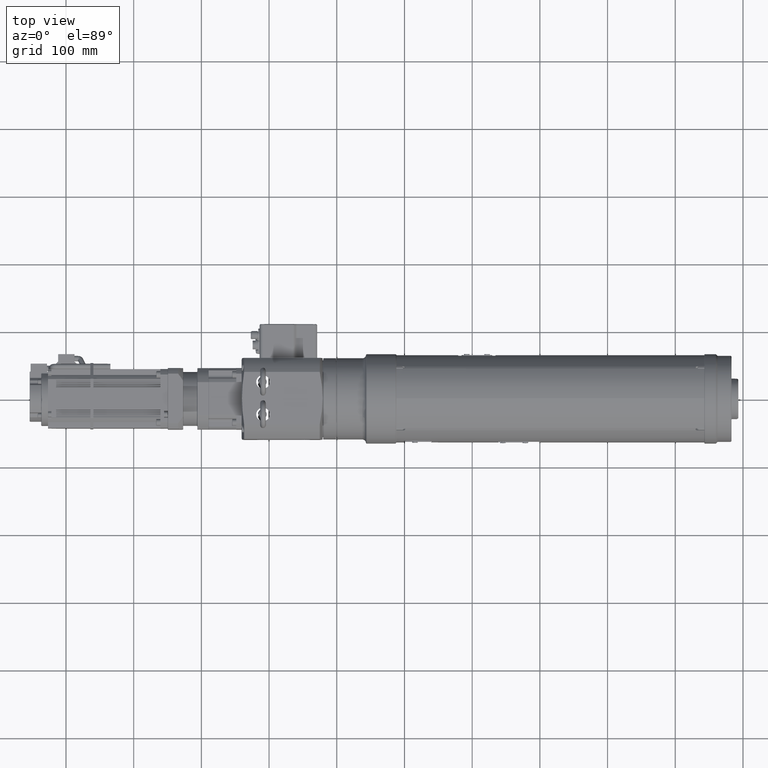
[diagram: clean part render]
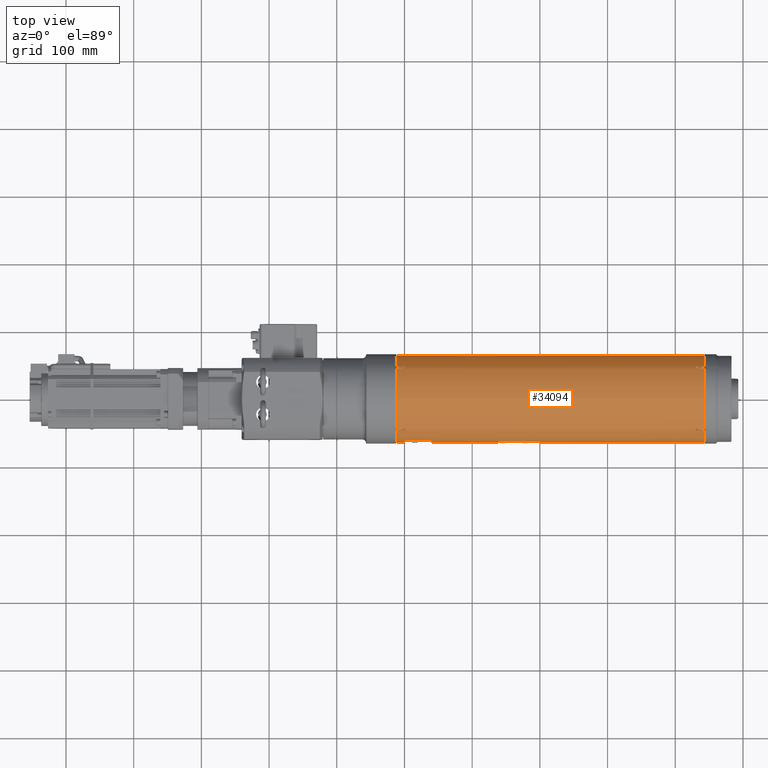
[diagram: same view with one face highlighted and labeled with its STEP entity id]
A machine part, top view. The second image highlights one B-rep face of the part: STEP entity #34094.
In plain terms, the highlighted cylindrical surface (bore or boss wall) has radius 64.5 mm, axis along (1, -0, 0).
Its self-contained STEP definition (entity closure, byte-faithful):
#377=FACE_BOUND('',#4638,.T.);
#378=FACE_BOUND('',#4639,.T.);
#379=FACE_BOUND('',#4640,.T.);
#1817=B_SPLINE_CURVE_WITH_KNOTS('',3,(#53776,#53777,#53778,#53779,#53780,
#53781,#53782,#53783,#53784,#53785,#53786,#53787,#53788,#53789,#53790,#53791,
#53792,#53793),.UNSPECIFIED.,.F.,.F.,(4,2,2,2,2,2,2,2,4),(0.,0.0941817951671154,
0.188363590334231,0.282545378323572,0.376727166312913,0.470908954302255,
0.565090742291597,0.659272537458713,0.753454332625828),.UNSPECIFIED.);
#1821=B_SPLINE_CURVE_WITH_KNOTS('',3,(#53926,#53927,#53928,#53929,#53930,
#53931,#53932,#53933,#53934,#53935,#53936,#53937,#53938,#53939,#53940,#53941,
#53942,#53943),.UNSPECIFIED.,.F.,.F.,(4,2,2,2,2,2,2,2,4),(0.,0.0941817951671119,
0.188363590334224,0.282545378323567,0.376727166312911,0.470908954302254,
0.565090742291597,0.659272537458709,0.753454332625821),.UNSPECIFIED.);
#1823=B_SPLINE_CURVE_WITH_KNOTS('',3,(#53981,#53982,#53983,#53984,#53985,
#53986,#53987,#53988,#53989,#53990,#53991,#53992,#53993,#53994,#53995,#53996,
#53997,#53998),.UNSPECIFIED.,.F.,.F.,(4,2,2,2,2,2,2,2,4),(-0.753454332625818,
-0.659272537458706,-0.565090742291594,-0.470908954302252,-0.376727166312909,
-0.282545378323567,-0.188363590334224,-0.094181795167112,0.),
 .UNSPECIFIED.);
#1824=B_SPLINE_CURVE_WITH_KNOTS('',3,(#54034,#54035,#54036,#54037,#54038,
#54039,#54040,#54041,#54042,#54043,#54044,#54045,#54046,#54047,#54048,#54049,
#54050,#54051),.UNSPECIFIED.,.F.,.F.,(4,2,2,2,2,2,2,2,4),(0.,0.0941817951671119,
0.188363590334224,0.282545378323567,0.376727166312911,0.470908954302254,
0.565090742291597,0.659272537458709,0.753454332625821),.UNSPECIFIED.);
#1825=B_SPLINE_CURVE_WITH_KNOTS('',3,(#54059,#54060,#54061,#54062,#54063,
#54064,#54065,#54066,#54067,#54068,#54069,#54070,#54071,#54072,#54073,#54074,
#54075,#54076),.UNSPECIFIED.,.F.,.F.,(4,2,2,2,2,2,2,2,4),(-0.753454332625819,
-0.659272537458707,-0.565090742291595,-0.470908954302252,-0.37672716631291,
-0.282545378323567,-0.188363590334224,-0.094181795167112,0.),
 .UNSPECIFIED.);
#1826=B_SPLINE_CURVE_WITH_KNOTS('',3,(#54079,#54080,#54081,#54082,#54083,
#54084,#54085,#54086,#54087,#54088,#54089,#54090,#54091,#54092,#54093,#54094,
#54095,#54096),.UNSPECIFIED.,.F.,.F.,(4,2,2,2,2,2,2,2,4),(-0.753454332625819,
-0.659272537458707,-0.565090742291595,-0.470908954302252,-0.37672716631291,
-0.282545378323567,-0.188363590334224,-0.094181795167112,0.),
 .UNSPECIFIED.);
#1827=B_SPLINE_CURVE_WITH_KNOTS('',3,(#54099,#54100,#54101,#54102,#54103,
#54104,#54105,#54106,#54107,#54108,#54109,#54110,#54111,#54112,#54113,#54114,
#54115,#54116),.UNSPECIFIED.,.F.,.F.,(4,2,2,2,2,2,2,2,4),(-0.753454332625819,
-0.659272537458707,-0.565090742291595,-0.470908954302252,-0.37672716631291,
-0.282545378323567,-0.188363590334224,-0.094181795167112,0.),
 .UNSPECIFIED.);
#1828=B_SPLINE_CURVE_WITH_KNOTS('',3,(#54122,#54123,#54124,#54125,#54126,
#54127,#54128,#54129,#54130,#54131,#54132,#54133,#54134,#54135,#54136,#54137,
#54138,#54139),.UNSPECIFIED.,.F.,.F.,(4,2,2,2,2,2,2,2,4),(0.,0.0941817951671119,
0.188363590334224,0.282545378323567,0.376727166312911,0.470908954302254,
0.565090742291597,0.659272537458709,0.753454332625821),.UNSPECIFIED.);
#2737=FACE_OUTER_BOUND('',#4637,.T.);
#4637=EDGE_LOOP('',(#24714,#24715,#24716,#24717,#24718,#24719,#24720,#24721,
#24722,#24723,#24724,#24725,#24726,#24727,#24728,#24729,#24730,#24731,#24732,
#24733,#24734,#24735,#24736,#24737,#24738,#24739,#24740,#24741,#24742,#24743,
#24744,#24745,#24746,#24747,#24748,#24749));
#4638=EDGE_LOOP('',(#24750,#24751,#24752,#24753));
#4639=EDGE_LOOP('',(#24754,#24755,#24756,#24757));
#4640=EDGE_LOOP('',(#24758,#24759,#24760,#24761));
#6621=CIRCLE('',#36654,64.5);
#6625=CIRCLE('',#36659,64.5);
#6626=CIRCLE('',#36661,64.5);
#6628=CIRCLE('',#36664,64.5);
#6629=CIRCLE('',#36665,64.5);
#6638=CIRCLE('',#36683,64.5);
#6642=CIRCLE('',#36693,64.5);
#6643=CIRCLE('',#36700,64.5);
#6644=CIRCLE('',#36702,64.5);
#6645=CIRCLE('',#36704,64.5);
#6646=CIRCLE('',#36707,64.5);
#6647=CIRCLE('',#36709,64.5);
#6648=CIRCLE('',#36710,64.5);
#6649=CIRCLE('',#36711,64.5);
#6650=CIRCLE('',#36712,64.5);
#6651=CIRCLE('',#36713,64.5);
#8445=LINE('',#53740,#11125);
#8451=LINE('',#53753,#11131);
#8457=LINE('',#53802,#11137);
#8462=LINE('',#53811,#11142);
#8464=LINE('',#53816,#11144);
#8466=LINE('',#53820,#11146);
#8482=LINE('',#53894,#11162);
#8484=LINE('',#53898,#11164);
#8490=LINE('',#53951,#11170);
#8497=LINE('',#54004,#11177);
#8501=LINE('',#54012,#11181);
#8504=LINE('',#54025,#11184);
#8505=LINE('',#54027,#11185);
#8507=LINE('',#54053,#11187);
#8508=LINE('',#54056,#11188);
#8509=LINE('',#54058,#11189);
#8510=LINE('',#54078,#11190);
#8511=LINE('',#54098,#11191);
#8512=LINE('',#54120,#11192);
#8513=LINE('',#54141,#11193);
#8514=LINE('',#54144,#11194);
#8515=LINE('',#54147,#11195);
#8516=LINE('',#54150,#11196);
#11125=VECTOR('',#42437,10.);
#11131=VECTOR('',#42445,10.);
#11137=VECTOR('',#42455,10.);
#11142=VECTOR('',#42462,10.);
#11144=VECTOR('',#42466,10.);
#11146=VECTOR('',#42468,10.);
#11162=VECTOR('',#42512,10.);
#11164=VECTOR('',#42514,10.);
#11170=VECTOR('',#42532,10.);
#11177=VECTOR('',#42543,10.);
#11181=VECTOR('',#42549,10.);
#11184=VECTOR('',#42566,10.);
#11185=VECTOR('',#42567,10.);
#11187=VECTOR('',#42575,10.);
#11188=VECTOR('',#42578,64.5);
#11189=VECTOR('',#42579,10.);
#11190=VECTOR('',#42580,10.);
#11191=VECTOR('',#42581,10.);
#11192=VECTOR('',#42584,10.);
#11193=VECTOR('',#42585,10.);
#11194=VECTOR('',#42588,10.);
#11195=VECTOR('',#42591,10.);
#11196=VECTOR('',#42594,10.);
#14207=VERTEX_POINT('',#53685);
#14208=VERTEX_POINT('',#53687);
#14209=VERTEX_POINT('',#53692);
#14212=VERTEX_POINT('',#53698);
#14213=VERTEX_POINT('',#53702);
#14214=VERTEX_POINT('',#53704);
#14215=VERTEX_POINT('',#53708);
#14217=VERTEX_POINT('',#53712);
#14218=VERTEX_POINT('',#53714);
#14227=VERTEX_POINT('',#53737);
#14228=VERTEX_POINT('',#53739);
#14233=VERTEX_POINT('',#53750);
#14234=VERTEX_POINT('',#53752);
#14236=VERTEX_POINT('',#53775);
#14239=VERTEX_POINT('',#53801);
#14242=VERTEX_POINT('',#53810);
#14243=VERTEX_POINT('',#53814);
#14244=VERTEX_POINT('',#53815);
#14245=VERTEX_POINT('',#53817);
#14246=VERTEX_POINT('',#53819);
#14265=VERTEX_POINT('',#53892);
#14266=VERTEX_POINT('',#53893);
#14267=VERTEX_POINT('',#53895);
#14268=VERTEX_POINT('',#53897);
#14270=VERTEX_POINT('',#53925);
#14273=VERTEX_POINT('',#53949);
#14275=VERTEX_POINT('',#53979);
#14279=VERTEX_POINT('',#54011);
#14280=VERTEX_POINT('',#54019);
#14281=VERTEX_POINT('',#54020);
#14282=VERTEX_POINT('',#54024);
#14283=VERTEX_POINT('',#54026);
#14284=VERTEX_POINT('',#54032);
#14285=VERTEX_POINT('',#54033);
#14286=VERTEX_POINT('',#54052);
#14287=VERTEX_POINT('',#54054);
#14288=VERTEX_POINT('',#54057);
#14289=VERTEX_POINT('',#54077);
#14290=VERTEX_POINT('',#54097);
#14291=VERTEX_POINT('',#54117);
#14292=VERTEX_POINT('',#54119);
#14293=VERTEX_POINT('',#54121);
#14294=VERTEX_POINT('',#54140);
#14295=VERTEX_POINT('',#54142);
#14296=VERTEX_POINT('',#54145);
#14297=VERTEX_POINT('',#54148);
#18006=EDGE_CURVE('',#14207,#14208,#6621,.T.);
#18013=EDGE_CURVE('',#14212,#14209,#6625,.T.);
#18015=EDGE_CURVE('',#14213,#14214,#6626,.T.);
#18020=EDGE_CURVE('',#14217,#14218,#6628,.T.);
#18021=EDGE_CURVE('',#14218,#14215,#6629,.T.);
#18032=EDGE_CURVE('',#14227,#14228,#8445,.T.);
#18038=EDGE_CURVE('',#14233,#14234,#8451,.T.);
#18041=EDGE_CURVE('',#14234,#14236,#1817,.T.);
#18046=EDGE_CURVE('',#14214,#14239,#8457,.T.);
#18051=EDGE_CURVE('',#14215,#14242,#8462,.T.);
#18053=EDGE_CURVE('',#14243,#14244,#8464,.T.);
#18055=EDGE_CURVE('',#14245,#14246,#8466,.T.);
#18070=EDGE_CURVE('',#14246,#14243,#6638,.T.);
#18081=EDGE_CURVE('',#14265,#14266,#8482,.T.);
#18083=EDGE_CURVE('',#14267,#14268,#8484,.T.);
#18088=EDGE_CURVE('',#14268,#14265,#6642,.T.);
#18090=EDGE_CURVE('',#14228,#14270,#1821,.T.);
#18094=EDGE_CURVE('',#14273,#14213,#8490,.T.);
#18099=EDGE_CURVE('',#14275,#14273,#1823,.T.);
#18103=EDGE_CURVE('',#14208,#14275,#8497,.T.);
#18107=EDGE_CURVE('',#14209,#14279,#8501,.T.);
#18109=EDGE_CURVE('',#14244,#14245,#6643,.T.);
#18110=EDGE_CURVE('',#14266,#14267,#6644,.T.);
#18111=EDGE_CURVE('',#14280,#14281,#6645,.T.);
#18113=EDGE_CURVE('',#14281,#14282,#8504,.T.);
#18114=EDGE_CURVE('',#14283,#14280,#8505,.T.);
#18116=EDGE_CURVE('',#14282,#14283,#6646,.T.);
#18117=EDGE_CURVE('',#14284,#14285,#1824,.T.);
#18118=EDGE_CURVE('',#14286,#14284,#8507,.T.);
#18119=EDGE_CURVE('',#14287,#14286,#6647,.T.);
#18120=EDGE_CURVE('',#14287,#14218,#8508,.T.);
#18121=EDGE_CURVE('',#14288,#14217,#8509,.T.);
#18122=EDGE_CURVE('',#14239,#14288,#1825,.T.);
#18123=EDGE_CURVE('',#14289,#14207,#8510,.T.);
#18124=EDGE_CURVE('',#14279,#14289,#1826,.T.);
#18125=EDGE_CURVE('',#14290,#14212,#8511,.T.);
#18126=EDGE_CURVE('',#14242,#14290,#1827,.T.);
#18127=EDGE_CURVE('',#14291,#14287,#6648,.T.);
#18128=EDGE_CURVE('',#14292,#14291,#8512,.T.);
#18129=EDGE_CURVE('',#14293,#14292,#1828,.T.);
#18130=EDGE_CURVE('',#14294,#14293,#8513,.T.);
#18131=EDGE_CURVE('',#14295,#14294,#6649,.T.);
#18132=EDGE_CURVE('',#14270,#14295,#8514,.T.);
#18133=EDGE_CURVE('',#14296,#14227,#6650,.T.);
#18134=EDGE_CURVE('',#14236,#14296,#8515,.T.);
#18135=EDGE_CURVE('',#14297,#14233,#6651,.T.);
#18136=EDGE_CURVE('',#14285,#14297,#8516,.T.);
#24714=ORIENTED_EDGE('',*,*,#18117,.F.);
#24715=ORIENTED_EDGE('',*,*,#18118,.F.);
#24716=ORIENTED_EDGE('',*,*,#18119,.F.);
#24717=ORIENTED_EDGE('',*,*,#18120,.T.);
#24718=ORIENTED_EDGE('',*,*,#18020,.F.);
#24719=ORIENTED_EDGE('',*,*,#18121,.F.);
#24720=ORIENTED_EDGE('',*,*,#18122,.F.);
#24721=ORIENTED_EDGE('',*,*,#18046,.F.);
#24722=ORIENTED_EDGE('',*,*,#18015,.F.);
#24723=ORIENTED_EDGE('',*,*,#18094,.F.);
#24724=ORIENTED_EDGE('',*,*,#18099,.F.);
#24725=ORIENTED_EDGE('',*,*,#18103,.F.);
#24726=ORIENTED_EDGE('',*,*,#18006,.F.);
#24727=ORIENTED_EDGE('',*,*,#18123,.F.);
#24728=ORIENTED_EDGE('',*,*,#18124,.F.);
#24729=ORIENTED_EDGE('',*,*,#18107,.F.);
#24730=ORIENTED_EDGE('',*,*,#18013,.F.);
#24731=ORIENTED_EDGE('',*,*,#18125,.F.);
#24732=ORIENTED_EDGE('',*,*,#18126,.F.);
#24733=ORIENTED_EDGE('',*,*,#18051,.F.);
#24734=ORIENTED_EDGE('',*,*,#18021,.F.);
#24735=ORIENTED_EDGE('',*,*,#18120,.F.);
#24736=ORIENTED_EDGE('',*,*,#18127,.F.);
#24737=ORIENTED_EDGE('',*,*,#18128,.F.);
#24738=ORIENTED_EDGE('',*,*,#18129,.F.);
#24739=ORIENTED_EDGE('',*,*,#18130,.F.);
#24740=ORIENTED_EDGE('',*,*,#18131,.F.);
#24741=ORIENTED_EDGE('',*,*,#18132,.F.);
#24742=ORIENTED_EDGE('',*,*,#18090,.F.);
#24743=ORIENTED_EDGE('',*,*,#18032,.F.);
#24744=ORIENTED_EDGE('',*,*,#18133,.F.);
#24745=ORIENTED_EDGE('',*,*,#18134,.F.);
#24746=ORIENTED_EDGE('',*,*,#18041,.F.);
#24747=ORIENTED_EDGE('',*,*,#18038,.F.);
#24748=ORIENTED_EDGE('',*,*,#18135,.F.);
#24749=ORIENTED_EDGE('',*,*,#18136,.F.);
#24750=ORIENTED_EDGE('',*,*,#18088,.F.);
#24751=ORIENTED_EDGE('',*,*,#18083,.F.);
#24752=ORIENTED_EDGE('',*,*,#18110,.F.);
#24753=ORIENTED_EDGE('',*,*,#18081,.F.);
#24754=ORIENTED_EDGE('',*,*,#18070,.F.);
#24755=ORIENTED_EDGE('',*,*,#18055,.F.);
#24756=ORIENTED_EDGE('',*,*,#18109,.F.);
#24757=ORIENTED_EDGE('',*,*,#18053,.F.);
#24758=ORIENTED_EDGE('',*,*,#18114,.T.);
#24759=ORIENTED_EDGE('',*,*,#18111,.T.);
#24760=ORIENTED_EDGE('',*,*,#18113,.T.);
#24761=ORIENTED_EDGE('',*,*,#18116,.T.);
#31344=CYLINDRICAL_SURFACE('',#36708,64.5);
#34094=ADVANCED_FACE('',(#2737,#377,#378,#379),#31344,.T.);
#36654=AXIS2_PLACEMENT_3D('',#53688,#42388,#42389);
#36659=AXIS2_PLACEMENT_3D('',#53700,#42401,#42402);
#36661=AXIS2_PLACEMENT_3D('',#53705,#42406,#42407);
#36664=AXIS2_PLACEMENT_3D('',#53715,#42415,#42416);
#36665=AXIS2_PLACEMENT_3D('',#53716,#42417,#42418);
#36683=AXIS2_PLACEMENT_3D('',#53849,#42491,#42492);
#36693=AXIS2_PLACEMENT_3D('',#53904,#42523,#42524);
#36700=AXIS2_PLACEMENT_3D('',#54015,#42553,#42554);
#36702=AXIS2_PLACEMENT_3D('',#54017,#42557,#42558);
#36704=AXIS2_PLACEMENT_3D('',#54021,#42561,#42562);
#36707=AXIS2_PLACEMENT_3D('',#54030,#42571,#42572);
#36708=AXIS2_PLACEMENT_3D('',#54031,#42573,#42574);
#36709=AXIS2_PLACEMENT_3D('',#54055,#42576,#42577);
#36710=AXIS2_PLACEMENT_3D('',#54118,#42582,#42583);
#36711=AXIS2_PLACEMENT_3D('',#54143,#42586,#42587);
#36712=AXIS2_PLACEMENT_3D('',#54146,#42589,#42590);
#36713=AXIS2_PLACEMENT_3D('',#54149,#42592,#42593);
#42388=DIRECTION('center_axis',(-1.,0.,0.));
#42389=DIRECTION('ref_axis',(9.86076131526265E-32,-2.98660214944739E-31,
-1.));
#42401=DIRECTION('center_axis',(-1.,0.,0.));
#42402=DIRECTION('ref_axis',(9.86076131526265E-32,-2.98660214944739E-31,
-1.));
#42406=DIRECTION('center_axis',(-1.,0.,0.));
#42407=DIRECTION('ref_axis',(9.86076131526265E-32,-2.98660214944739E-31,
-1.));
#42415=DIRECTION('center_axis',(-1.,0.,0.));
#42416=DIRECTION('ref_axis',(9.86076131526265E-32,-2.98660214944739E-31,
-1.));
#42417=DIRECTION('center_axis',(-1.,0.,0.));
#42418=DIRECTION('ref_axis',(9.86076131526265E-32,-2.98660214944739E-31,
-1.));
#42437=DIRECTION('',(-1.,4.93038065763132E-32,-9.86076131526265E-32));
#42445=DIRECTION('',(-1.,4.93038065763132E-32,-9.86076131526265E-32));
#42455=DIRECTION('',(1.,-4.93038065763132E-32,9.86076131526265E-32));
#42462=DIRECTION('',(1.,-4.93038065763132E-32,9.86076131526265E-32));
#42466=DIRECTION('',(-1.,4.93038065763132E-32,-9.86076131526265E-32));
#42468=DIRECTION('',(1.,-4.93038065763132E-32,9.86076131526265E-32));
#42491=DIRECTION('center_axis',(-1.,4.93038065763132E-32,-9.86076131526265E-32));
#42492=DIRECTION('ref_axis',(9.86076131526265E-32,-2.98660214944739E-31,
-1.));
#42512=DIRECTION('',(1.,-4.93038065763132E-32,9.86076131526265E-32));
#42514=DIRECTION('',(-1.,4.93038065763132E-32,-9.86076131526265E-32));
#42523=DIRECTION('center_axis',(1.,-4.93038065763132E-32,9.86076131526265E-32));
#42524=DIRECTION('ref_axis',(9.86076131526265E-32,-2.98660214944739E-31,
-1.));
#42532=DIRECTION('',(-1.,4.93038065763132E-32,-9.86076131526265E-32));
#42543=DIRECTION('',(1.,-4.93038065763132E-32,9.86076131526265E-32));
#42549=DIRECTION('',(1.,-4.93038065763132E-32,9.86076131526265E-32));
#42553=DIRECTION('center_axis',(1.,-4.93038065763132E-32,9.86076131526265E-32));
#42554=DIRECTION('ref_axis',(9.86076131526265E-32,-2.98660214944739E-31,
-1.));
#42557=DIRECTION('center_axis',(-1.,4.93038065763132E-32,-9.86076131526265E-32));
#42558=DIRECTION('ref_axis',(9.86076131526265E-32,-2.98660214944739E-31,
-1.));
#42561=DIRECTION('center_axis',(1.,-4.93038065763132E-32,9.86076131526265E-32));
#42562=DIRECTION('ref_axis',(9.86076131526265E-32,-2.98660214944739E-31,
-1.));
#42566=DIRECTION('',(-1.,4.93038065763132E-32,-9.86076131526265E-32));
#42567=DIRECTION('',(1.,-4.93038065763132E-32,9.86076131526265E-32));
#42571=DIRECTION('center_axis',(-1.,4.93038065763132E-32,-9.86076131526265E-32));
#42572=DIRECTION('ref_axis',(9.86076131526265E-32,-2.98660214944739E-31,
-1.));
#42573=DIRECTION('center_axis',(1.,-4.93038065763132E-32,9.86076131526265E-32));
#42574=DIRECTION('ref_axis',(9.86076131526265E-32,-2.98660214944739E-31,
-1.));
#42575=DIRECTION('',(-1.,4.93038065763132E-32,-9.86076131526265E-32));
#42576=DIRECTION('center_axis',(1.,-4.93038065763132E-32,9.86076131526265E-32));
#42577=DIRECTION('ref_axis',(9.86076131526265E-32,-2.98660214944739E-31,
-1.));
#42578=DIRECTION('',(-1.,4.93038065763132E-32,-9.86076131526265E-32));
#42579=DIRECTION('',(-1.,4.93038065763132E-32,-9.86076131526265E-32));
#42580=DIRECTION('',(-1.,4.93038065763132E-32,-9.86076131526265E-32));
#42581=DIRECTION('',(-1.,4.93038065763132E-32,-9.86076131526265E-32));
#42582=DIRECTION('center_axis',(1.,-4.93038065763132E-32,9.86076131526265E-32));
#42583=DIRECTION('ref_axis',(9.86076131526265E-32,-2.98660214944739E-31,
-1.));
#42584=DIRECTION('',(1.,-4.93038065763132E-32,9.86076131526265E-32));
#42585=DIRECTION('',(-1.,4.93038065763132E-32,-9.86076131526265E-32));
#42586=DIRECTION('center_axis',(1.,-4.93038065763132E-32,9.86076131526265E-32));
#42587=DIRECTION('ref_axis',(9.86076131526265E-32,-2.98660214944739E-31,
-1.));
#42588=DIRECTION('',(1.,-4.93038065763132E-32,9.86076131526265E-32));
#42589=DIRECTION('center_axis',(1.,-4.93038065763132E-32,9.86076131526265E-32));
#42590=DIRECTION('ref_axis',(9.86076131526265E-32,-2.98660214944739E-31,
-1.));
#42591=DIRECTION('',(1.,-4.93038065763132E-32,9.86076131526265E-32));
#42592=DIRECTION('center_axis',(1.,-4.93038065763132E-32,9.86076131526265E-32));
#42593=DIRECTION('ref_axis',(9.86076131526265E-32,-2.98660214944739E-31,
-1.));
#42594=DIRECTION('',(1.,-4.93038065763132E-32,9.86076131526265E-32));
#53685=CARTESIAN_POINT('',(87.9999999999999,43.806348507457,-47.3418824133897));
#53687=CARTESIAN_POINT('',(87.9999999999999,-43.806348507457,-47.3418824133898));
#53688=CARTESIAN_POINT('Origin',(87.9999999999999,2.24332319922225E-29,
-4.4866463984445E-29));
#53692=CARTESIAN_POINT('',(87.9999999999999,47.3418824133898,-43.806348507457));
#53698=CARTESIAN_POINT('',(87.9999999999999,47.3418824133897,43.806348507457));
#53700=CARTESIAN_POINT('Origin',(87.9999999999999,2.24332319922225E-29,
-4.4866463984445E-29));
#53702=CARTESIAN_POINT('',(87.9999999999999,-47.3418824133897,-43.806348507457));
#53704=CARTESIAN_POINT('',(87.9999999999999,-47.3418824133898,43.806348507457));
#53705=CARTESIAN_POINT('Origin',(87.9999999999999,2.24332319922225E-29,
-4.4866463984445E-29));
#53708=CARTESIAN_POINT('',(87.9999999999999,43.806348507457,47.3418824133898));
#53712=CARTESIAN_POINT('',(87.9999999999999,-43.806348507457,47.3418824133897));
#53714=CARTESIAN_POINT('',(87.9999999999999,-7.89897185450039E-15,64.5));
#53715=CARTESIAN_POINT('Origin',(87.9999999999999,2.24332319922225E-29,
-4.4866463984445E-29));
#53716=CARTESIAN_POINT('Origin',(87.9999999999999,2.24332319922225E-29,
-4.4866463984445E-29));
#53737=CARTESIAN_POINT('',(543.,43.806348507457,-47.3418824133897));
#53739=CARTESIAN_POINT('',(532.5,43.806348507457,-47.3418824133897));
#53740=CARTESIAN_POINT('',(87.9999999999999,43.806348507457,-47.3418824133897));
#53750=CARTESIAN_POINT('',(543.,-47.3418824133897,-43.806348507457));
#53752=CARTESIAN_POINT('',(532.5,-47.3418824133897,-43.806348507457));
#53753=CARTESIAN_POINT('',(87.9999999999999,-47.3418824133897,-43.806348507457));
#53775=CARTESIAN_POINT('',(532.5,-43.806348507457,-47.3418824133898));
#53776=CARTESIAN_POINT('Ctrl Pts',(532.5,-47.3418824133897,-43.806348507457));
#53777=CARTESIAN_POINT('Ctrl Pts',(532.186060682776,-47.3418824133897,-43.806348507457));
#53778=CARTESIAN_POINT('Ctrl Pts',(531.851217288989,-47.2993021657011,-43.8525063154338));
#53779=CARTESIAN_POINT('Ctrl Pts',(531.23527825855,-47.1253527519338,-44.0393849128562));
#53780=CARTESIAN_POINT('Ctrl Pts',(530.954179960479,-46.9938918982494,-44.1800115631284));
#53781=CARTESIAN_POINT('Ctrl Pts',(530.510286150503,-46.6886174010752,-44.5024977122747));
#53782=CARTESIAN_POINT('Ctrl Pts',(530.317891219273,-46.494432278645,-44.7058456266022));
#53783=CARTESIAN_POINT('Ctrl Pts',(530.062747273616,-46.0653587535132,-45.1478414657103));
#53784=CARTESIAN_POINT('Ctrl Pts',(530.,-45.8303759897041,-45.3863987833605));
#53785=CARTESIAN_POINT('Ctrl Pts',(530.,-45.3863987833605,-45.8303759897041));
#53786=CARTESIAN_POINT('Ctrl Pts',(530.062747273616,-45.1478414657103,-46.0653587535132));
#53787=CARTESIAN_POINT('Ctrl Pts',(530.317891219273,-44.7058456266022,-46.494432278645));
#53788=CARTESIAN_POINT('Ctrl Pts',(530.510286150503,-44.5024977122747,-46.6886174010752));
#53789=CARTESIAN_POINT('Ctrl Pts',(530.954179960479,-44.1800115631284,-46.9938918982494));
#53790=CARTESIAN_POINT('Ctrl Pts',(531.23527825855,-44.0393849128562,-47.1253527519338));
#53791=CARTESIAN_POINT('Ctrl Pts',(531.851217288989,-43.8525063154338,-47.2993021657012));
#53792=CARTESIAN_POINT('Ctrl Pts',(532.186060682776,-43.806348507457,-47.3418824133898));
#53793=CARTESIAN_POINT('Ctrl Pts',(532.5,-43.806348507457,-47.3418824133898));
#53801=CARTESIAN_POINT('',(98.4999999999999,-47.3418824133898,43.806348507457));
#53802=CARTESIAN_POINT('',(87.9999999999999,-47.3418824133898,43.806348507457));
#53810=CARTESIAN_POINT('',(98.4999999999999,43.806348507457,47.3418824133898));
#53811=CARTESIAN_POINT('',(87.9999999999999,43.806348507457,47.3418824133898));
#53814=CARTESIAN_POINT('',(299.,-63.,13.8293166859393));
#53815=CARTESIAN_POINT('',(239.,-63.,13.8293166859393));
#53816=CARTESIAN_POINT('',(87.9999999999999,-63.,13.8293166859393));
#53817=CARTESIAN_POINT('',(239.,-63.,-13.8293166859393));
#53819=CARTESIAN_POINT('',(299.,-63.,-13.8293166859393));
#53820=CARTESIAN_POINT('',(87.9999999999999,-63.,-13.8293166859393));
#53849=CARTESIAN_POINT('Origin',(299.,1.20301288046204E-29,-2.40602576092409E-29));
#53892=CARTESIAN_POINT('',(99.4999999999999,-62.,-17.7834192437787));
#53893=CARTESIAN_POINT('',(139.5,-62.,-17.7834192437787));
#53894=CARTESIAN_POINT('',(87.9999999999999,-62.,-17.7834192437787));
#53895=CARTESIAN_POINT('',(139.5,-62.,17.7834192437787));
#53897=CARTESIAN_POINT('',(99.4999999999999,-62.,17.7834192437787));
#53898=CARTESIAN_POINT('',(87.9999999999999,-62.,17.7834192437787));
#53904=CARTESIAN_POINT('Origin',(99.4999999999999,2.18662382165949E-29,
-4.37324764331898E-29));
#53925=CARTESIAN_POINT('',(532.5,47.3418824133898,-43.806348507457));
#53926=CARTESIAN_POINT('Ctrl Pts',(532.5,43.806348507457,-47.3418824133897));
#53927=CARTESIAN_POINT('Ctrl Pts',(532.186060682776,43.806348507457,-47.3418824133897));
#53928=CARTESIAN_POINT('Ctrl Pts',(531.851217288989,43.8525063154339,-47.2993021657011));
#53929=CARTESIAN_POINT('Ctrl Pts',(531.23527825855,44.0393849128562,-47.1253527519338));
#53930=CARTESIAN_POINT('Ctrl Pts',(530.954179960479,44.1800115631285,-46.9938918982494));
#53931=CARTESIAN_POINT('Ctrl Pts',(530.510286150503,44.5024977122747,-46.6886174010752));
#53932=CARTESIAN_POINT('Ctrl Pts',(530.317891219273,44.7058456266022,-46.494432278645));
#53933=CARTESIAN_POINT('Ctrl Pts',(530.062747273616,45.1478414657103,-46.0653587535132));
#53934=CARTESIAN_POINT('Ctrl Pts',(530.,45.3863987833605,-45.8303759897041));
#53935=CARTESIAN_POINT('Ctrl Pts',(530.,45.8303759897041,-45.3863987833605));
#53936=CARTESIAN_POINT('Ctrl Pts',(530.062747273616,46.0653587535132,-45.1478414657103));
#53937=CARTESIAN_POINT('Ctrl Pts',(530.317891219273,46.494432278645,-44.7058456266022));
#53938=CARTESIAN_POINT('Ctrl Pts',(530.510286150503,46.6886174010752,-44.5024977122747));
#53939=CARTESIAN_POINT('Ctrl Pts',(530.954179960479,46.9938918982494,-44.1800115631284));
#53940=CARTESIAN_POINT('Ctrl Pts',(531.23527825855,47.1253527519338,-44.0393849128561));
#53941=CARTESIAN_POINT('Ctrl Pts',(531.851217288989,47.2993021657012,-43.8525063154338));
#53942=CARTESIAN_POINT('Ctrl Pts',(532.186060682776,47.3418824133897,-43.806348507457));
#53943=CARTESIAN_POINT('Ctrl Pts',(532.5,47.3418824133897,-43.806348507457));
#53949=CARTESIAN_POINT('',(98.4999999999999,-47.3418824133897,-43.806348507457));
#53951=CARTESIAN_POINT('',(87.9999999999999,-47.3418824133897,-43.806348507457));
#53979=CARTESIAN_POINT('',(98.4999999999999,-43.806348507457,-47.3418824133898));
#53981=CARTESIAN_POINT('Ctrl Pts',(98.4999999999999,-43.806348507457,-47.3418824133898));
#53982=CARTESIAN_POINT('Ctrl Pts',(98.8139393172236,-43.806348507457,-47.3418824133898));
#53983=CARTESIAN_POINT('Ctrl Pts',(99.148782711011,-43.8525063154338,-47.2993021657012));
#53984=CARTESIAN_POINT('Ctrl Pts',(99.7647217414499,-44.0393849128561,-47.1253527519338));
#53985=CARTESIAN_POINT('Ctrl Pts',(100.045820039521,-44.1800115631284,-46.9938918982494));
#53986=CARTESIAN_POINT('Ctrl Pts',(100.489713849496,-44.5024977122747,-46.6886174010752));
#53987=CARTESIAN_POINT('Ctrl Pts',(100.682108780726,-44.7058456266022,-46.494432278645));
#53988=CARTESIAN_POINT('Ctrl Pts',(100.937252726384,-45.1478414657103,-46.0653587535132));
#53989=CARTESIAN_POINT('Ctrl Pts',(101.,-45.3863987833605,-45.8303759897041));
#53990=CARTESIAN_POINT('Ctrl Pts',(101.,-45.8303759897041,-45.3863987833605));
#53991=CARTESIAN_POINT('Ctrl Pts',(100.937252726384,-46.0653587535132,-45.1478414657103));
#53992=CARTESIAN_POINT('Ctrl Pts',(100.682108780726,-46.494432278645,-44.7058456266022));
#53993=CARTESIAN_POINT('Ctrl Pts',(100.489713849496,-46.6886174010752,-44.5024977122747));
#53994=CARTESIAN_POINT('Ctrl Pts',(100.045820039521,-46.9938918982493,-44.1800115631285));
#53995=CARTESIAN_POINT('Ctrl Pts',(99.7647217414499,-47.1253527519337,-44.0393849128562));
#53996=CARTESIAN_POINT('Ctrl Pts',(99.148782711011,-47.2993021657011,-43.8525063154339));
#53997=CARTESIAN_POINT('Ctrl Pts',(98.8139393172236,-47.3418824133897,-43.806348507457));
#53998=CARTESIAN_POINT('Ctrl Pts',(98.4999999999999,-47.3418824133897,-43.806348507457));
#54004=CARTESIAN_POINT('',(87.9999999999999,-43.806348507457,-47.3418824133898));
#54011=CARTESIAN_POINT('',(98.4999999999999,47.3418824133898,-43.806348507457));
#54012=CARTESIAN_POINT('',(87.9999999999999,47.3418824133898,-43.806348507457));
#54015=CARTESIAN_POINT('Origin',(239.,1.49883571991992E-29,-2.99767143983984E-29));
#54017=CARTESIAN_POINT('Origin',(139.5,1.98940859535424E-29,-3.97881719070848E-29));
#54019=CARTESIAN_POINT('',(234.5,63.5,-11.3137084989847));
#54020=CARTESIAN_POINT('',(234.5,63.5,11.3137084989847));
#54021=CARTESIAN_POINT('Origin',(234.5,1.52102243287926E-29,-3.04204486575853E-29));
#54024=CARTESIAN_POINT('',(179.5,63.5,11.3137084989847));
#54025=CARTESIAN_POINT('',(87.9999999999999,63.5,11.3137084989848));
#54026=CARTESIAN_POINT('',(179.5,63.5,-11.3137084989847));
#54027=CARTESIAN_POINT('',(87.9999999999999,63.5,-11.3137084989848));
#54030=CARTESIAN_POINT('Origin',(179.5,1.79219336904899E-29,-3.58438673809797E-29));
#54031=CARTESIAN_POINT('Origin',(87.9999999999999,2.24332319922225E-29,
-4.4866463984445E-29));
#54032=CARTESIAN_POINT('',(532.5,-43.806348507457,47.3418824133897));
#54033=CARTESIAN_POINT('',(532.5,-47.3418824133898,43.806348507457));
#54034=CARTESIAN_POINT('Ctrl Pts',(532.5,-43.806348507457,47.3418824133897));
#54035=CARTESIAN_POINT('Ctrl Pts',(532.186060682776,-43.806348507457,47.3418824133897));
#54036=CARTESIAN_POINT('Ctrl Pts',(531.851217288989,-43.8525063154339,47.2993021657011));
#54037=CARTESIAN_POINT('Ctrl Pts',(531.23527825855,-44.0393849128562,47.1253527519338));
#54038=CARTESIAN_POINT('Ctrl Pts',(530.954179960479,-44.1800115631285,46.9938918982494));
#54039=CARTESIAN_POINT('Ctrl Pts',(530.510286150503,-44.5024977122747,46.6886174010752));
#54040=CARTESIAN_POINT('Ctrl Pts',(530.317891219273,-44.7058456266022,46.494432278645));
#54041=CARTESIAN_POINT('Ctrl Pts',(530.062747273616,-45.1478414657103,46.0653587535132));
#54042=CARTESIAN_POINT('Ctrl Pts',(530.,-45.3863987833605,45.8303759897041));
#54043=CARTESIAN_POINT('Ctrl Pts',(530.,-45.8303759897041,45.3863987833605));
#54044=CARTESIAN_POINT('Ctrl Pts',(530.062747273616,-46.0653587535132,45.1478414657103));
#54045=CARTESIAN_POINT('Ctrl Pts',(530.317891219273,-46.494432278645,44.7058456266022));
#54046=CARTESIAN_POINT('Ctrl Pts',(530.510286150503,-46.6886174010752,44.5024977122747));
#54047=CARTESIAN_POINT('Ctrl Pts',(530.954179960479,-46.9938918982494,44.1800115631284));
#54048=CARTESIAN_POINT('Ctrl Pts',(531.23527825855,-47.1253527519338,44.0393849128561));
#54049=CARTESIAN_POINT('Ctrl Pts',(531.851217288989,-47.2993021657012,43.8525063154338));
#54050=CARTESIAN_POINT('Ctrl Pts',(532.186060682776,-47.3418824133897,43.806348507457));
#54051=CARTESIAN_POINT('Ctrl Pts',(532.5,-47.3418824133897,43.806348507457));
#54052=CARTESIAN_POINT('',(543.,-43.806348507457,47.3418824133897));
#54053=CARTESIAN_POINT('',(87.9999999999999,-43.806348507457,47.3418824133897));
#54054=CARTESIAN_POINT('',(543.,-7.89897185450041E-15,64.5));
#54055=CARTESIAN_POINT('Origin',(543.,0.,0.));
#54056=CARTESIAN_POINT('',(87.9999999999999,-7.89897185450039E-15,64.5));
#54057=CARTESIAN_POINT('',(98.4999999999999,-43.806348507457,47.3418824133897));
#54058=CARTESIAN_POINT('',(87.9999999999999,-43.806348507457,47.3418824133897));
#54059=CARTESIAN_POINT('Ctrl Pts',(98.4999999999999,-47.3418824133897,43.806348507457));
#54060=CARTESIAN_POINT('Ctrl Pts',(98.8139393172236,-47.3418824133897,43.806348507457));
#54061=CARTESIAN_POINT('Ctrl Pts',(99.148782711011,-47.2993021657012,43.8525063154338));
#54062=CARTESIAN_POINT('Ctrl Pts',(99.7647217414499,-47.1253527519338,44.0393849128562));
#54063=CARTESIAN_POINT('Ctrl Pts',(100.045820039521,-46.9938918982494,44.1800115631284));
#54064=CARTESIAN_POINT('Ctrl Pts',(100.489713849496,-46.6886174010752,44.5024977122747));
#54065=CARTESIAN_POINT('Ctrl Pts',(100.682108780726,-46.494432278645,44.7058456266022));
#54066=CARTESIAN_POINT('Ctrl Pts',(100.937252726384,-46.0653587535132,45.1478414657103));
#54067=CARTESIAN_POINT('Ctrl Pts',(101.,-45.8303759897041,45.3863987833605));
#54068=CARTESIAN_POINT('Ctrl Pts',(101.,-45.3863987833605,45.8303759897041));
#54069=CARTESIAN_POINT('Ctrl Pts',(100.937252726384,-45.1478414657103,46.0653587535132));
#54070=CARTESIAN_POINT('Ctrl Pts',(100.682108780726,-44.7058456266022,46.494432278645));
#54071=CARTESIAN_POINT('Ctrl Pts',(100.489713849496,-44.5024977122747,46.6886174010752));
#54072=CARTESIAN_POINT('Ctrl Pts',(100.045820039521,-44.1800115631285,46.9938918982494));
#54073=CARTESIAN_POINT('Ctrl Pts',(99.7647217414499,-44.0393849128562,47.1253527519338));
#54074=CARTESIAN_POINT('Ctrl Pts',(99.148782711011,-43.8525063154338,47.2993021657011));
#54075=CARTESIAN_POINT('Ctrl Pts',(98.8139393172236,-43.806348507457,47.3418824133897));
#54076=CARTESIAN_POINT('Ctrl Pts',(98.4999999999999,-43.806348507457,47.3418824133897));
#54077=CARTESIAN_POINT('',(98.4999999999999,43.806348507457,-47.3418824133897));
#54078=CARTESIAN_POINT('',(87.9999999999999,43.806348507457,-47.3418824133897));
#54079=CARTESIAN_POINT('Ctrl Pts',(98.4999999999999,47.3418824133897,-43.806348507457));
#54080=CARTESIAN_POINT('Ctrl Pts',(98.8139393172236,47.3418824133897,-43.806348507457));
#54081=CARTESIAN_POINT('Ctrl Pts',(99.148782711011,47.2993021657012,-43.8525063154338));
#54082=CARTESIAN_POINT('Ctrl Pts',(99.7647217414499,47.1253527519338,-44.0393849128562));
#54083=CARTESIAN_POINT('Ctrl Pts',(100.045820039521,46.9938918982494,-44.1800115631284));
#54084=CARTESIAN_POINT('Ctrl Pts',(100.489713849496,46.6886174010752,-44.5024977122747));
#54085=CARTESIAN_POINT('Ctrl Pts',(100.682108780726,46.494432278645,-44.7058456266022));
#54086=CARTESIAN_POINT('Ctrl Pts',(100.937252726384,46.0653587535132,-45.1478414657103));
#54087=CARTESIAN_POINT('Ctrl Pts',(101.,45.8303759897041,-45.3863987833605));
#54088=CARTESIAN_POINT('Ctrl Pts',(101.,45.3863987833605,-45.8303759897041));
#54089=CARTESIAN_POINT('Ctrl Pts',(100.937252726384,45.1478414657103,-46.0653587535132));
#54090=CARTESIAN_POINT('Ctrl Pts',(100.682108780726,44.7058456266022,-46.494432278645));
#54091=CARTESIAN_POINT('Ctrl Pts',(100.489713849496,44.5024977122747,-46.6886174010752));
#54092=CARTESIAN_POINT('Ctrl Pts',(100.045820039521,44.1800115631285,-46.9938918982494));
#54093=CARTESIAN_POINT('Ctrl Pts',(99.7647217414499,44.0393849128562,-47.1253527519338));
#54094=CARTESIAN_POINT('Ctrl Pts',(99.148782711011,43.8525063154338,-47.2993021657011));
#54095=CARTESIAN_POINT('Ctrl Pts',(98.8139393172236,43.806348507457,-47.3418824133897));
#54096=CARTESIAN_POINT('Ctrl Pts',(98.4999999999999,43.806348507457,-47.3418824133897));
#54097=CARTESIAN_POINT('',(98.4999999999999,47.3418824133897,43.806348507457));
#54098=CARTESIAN_POINT('',(87.9999999999999,47.3418824133897,43.806348507457));
#54099=CARTESIAN_POINT('Ctrl Pts',(98.4999999999999,43.806348507457,47.3418824133897));
#54100=CARTESIAN_POINT('Ctrl Pts',(98.8139393172236,43.806348507457,47.3418824133897));
#54101=CARTESIAN_POINT('Ctrl Pts',(99.148782711011,43.8525063154338,47.2993021657012));
#54102=CARTESIAN_POINT('Ctrl Pts',(99.7647217414499,44.0393849128562,47.1253527519338));
#54103=CARTESIAN_POINT('Ctrl Pts',(100.045820039521,44.1800115631284,46.9938918982494));
#54104=CARTESIAN_POINT('Ctrl Pts',(100.489713849496,44.5024977122747,46.6886174010752));
#54105=CARTESIAN_POINT('Ctrl Pts',(100.682108780726,44.7058456266022,46.494432278645));
#54106=CARTESIAN_POINT('Ctrl Pts',(100.937252726384,45.1478414657103,46.0653587535132));
#54107=CARTESIAN_POINT('Ctrl Pts',(101.,45.3863987833605,45.8303759897041));
#54108=CARTESIAN_POINT('Ctrl Pts',(101.,45.8303759897041,45.3863987833605));
#54109=CARTESIAN_POINT('Ctrl Pts',(100.937252726384,46.0653587535132,45.1478414657103));
#54110=CARTESIAN_POINT('Ctrl Pts',(100.682108780726,46.494432278645,44.7058456266022));
#54111=CARTESIAN_POINT('Ctrl Pts',(100.489713849496,46.6886174010752,44.5024977122747));
#54112=CARTESIAN_POINT('Ctrl Pts',(100.045820039521,46.9938918982494,44.1800115631285));
#54113=CARTESIAN_POINT('Ctrl Pts',(99.7647217414499,47.1253527519338,44.0393849128562));
#54114=CARTESIAN_POINT('Ctrl Pts',(99.148782711011,47.2993021657011,43.8525063154338));
#54115=CARTESIAN_POINT('Ctrl Pts',(98.8139393172236,47.3418824133897,43.806348507457));
#54116=CARTESIAN_POINT('Ctrl Pts',(98.4999999999999,47.3418824133897,43.806348507457));
#54117=CARTESIAN_POINT('',(543.,43.806348507457,47.3418824133898));
#54118=CARTESIAN_POINT('Origin',(543.,0.,0.));
#54119=CARTESIAN_POINT('',(532.5,43.806348507457,47.3418824133898));
#54120=CARTESIAN_POINT('',(87.9999999999999,43.806348507457,47.3418824133898));
#54121=CARTESIAN_POINT('',(532.5,47.3418824133897,43.806348507457));
#54122=CARTESIAN_POINT('Ctrl Pts',(532.5,47.3418824133897,43.806348507457));
#54123=CARTESIAN_POINT('Ctrl Pts',(532.186060682776,47.3418824133897,43.806348507457));
#54124=CARTESIAN_POINT('Ctrl Pts',(531.851217288989,47.2993021657011,43.8525063154339));
#54125=CARTESIAN_POINT('Ctrl Pts',(531.23527825855,47.1253527519338,44.0393849128562));
#54126=CARTESIAN_POINT('Ctrl Pts',(530.954179960479,46.9938918982494,44.1800115631285));
#54127=CARTESIAN_POINT('Ctrl Pts',(530.510286150503,46.6886174010752,44.5024977122747));
#54128=CARTESIAN_POINT('Ctrl Pts',(530.317891219273,46.494432278645,44.7058456266022));
#54129=CARTESIAN_POINT('Ctrl Pts',(530.062747273616,46.0653587535132,45.1478414657103));
#54130=CARTESIAN_POINT('Ctrl Pts',(530.,45.8303759897041,45.3863987833605));
#54131=CARTESIAN_POINT('Ctrl Pts',(530.,45.3863987833605,45.8303759897041));
#54132=CARTESIAN_POINT('Ctrl Pts',(530.062747273616,45.1478414657103,46.0653587535132));
#54133=CARTESIAN_POINT('Ctrl Pts',(530.317891219273,44.7058456266022,46.494432278645));
#54134=CARTESIAN_POINT('Ctrl Pts',(530.510286150503,44.5024977122747,46.6886174010752));
#54135=CARTESIAN_POINT('Ctrl Pts',(530.954179960479,44.1800115631284,46.9938918982494));
#54136=CARTESIAN_POINT('Ctrl Pts',(531.23527825855,44.0393849128561,47.1253527519338));
#54137=CARTESIAN_POINT('Ctrl Pts',(531.851217288989,43.8525063154338,47.2993021657012));
#54138=CARTESIAN_POINT('Ctrl Pts',(532.186060682776,43.806348507457,47.3418824133897));
#54139=CARTESIAN_POINT('Ctrl Pts',(532.5,43.806348507457,47.3418824133897));
#54140=CARTESIAN_POINT('',(543.,47.3418824133897,43.806348507457));
#54141=CARTESIAN_POINT('',(87.9999999999999,47.3418824133897,43.806348507457));
#54142=CARTESIAN_POINT('',(543.,47.3418824133898,-43.806348507457));
#54143=CARTESIAN_POINT('Origin',(543.,0.,0.));
#54144=CARTESIAN_POINT('',(87.9999999999999,47.3418824133898,-43.806348507457));
#54145=CARTESIAN_POINT('',(543.,-43.806348507457,-47.3418824133898));
#54146=CARTESIAN_POINT('Origin',(543.,0.,0.));
#54147=CARTESIAN_POINT('',(87.9999999999999,-43.806348507457,-47.3418824133898));
#54148=CARTESIAN_POINT('',(543.,-47.3418824133898,43.806348507457));
#54149=CARTESIAN_POINT('Origin',(543.,0.,0.));
#54150=CARTESIAN_POINT('',(87.9999999999999,-47.3418824133898,43.806348507457));